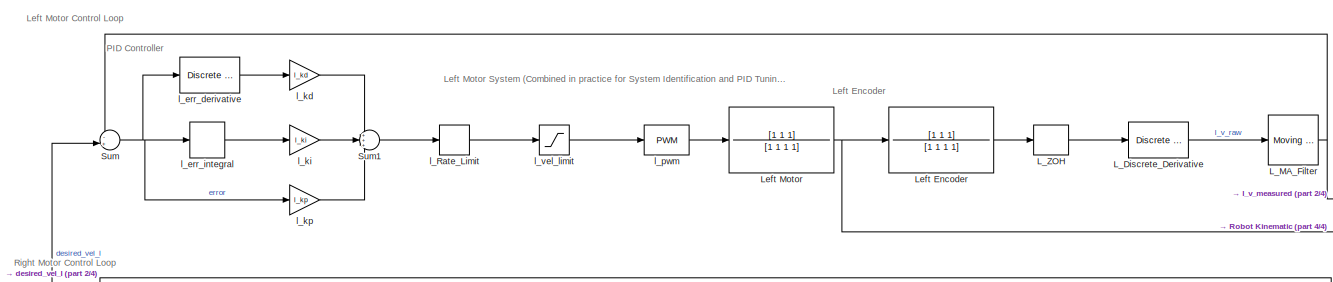
[diagram: root canvas - part 1/4, top center region]
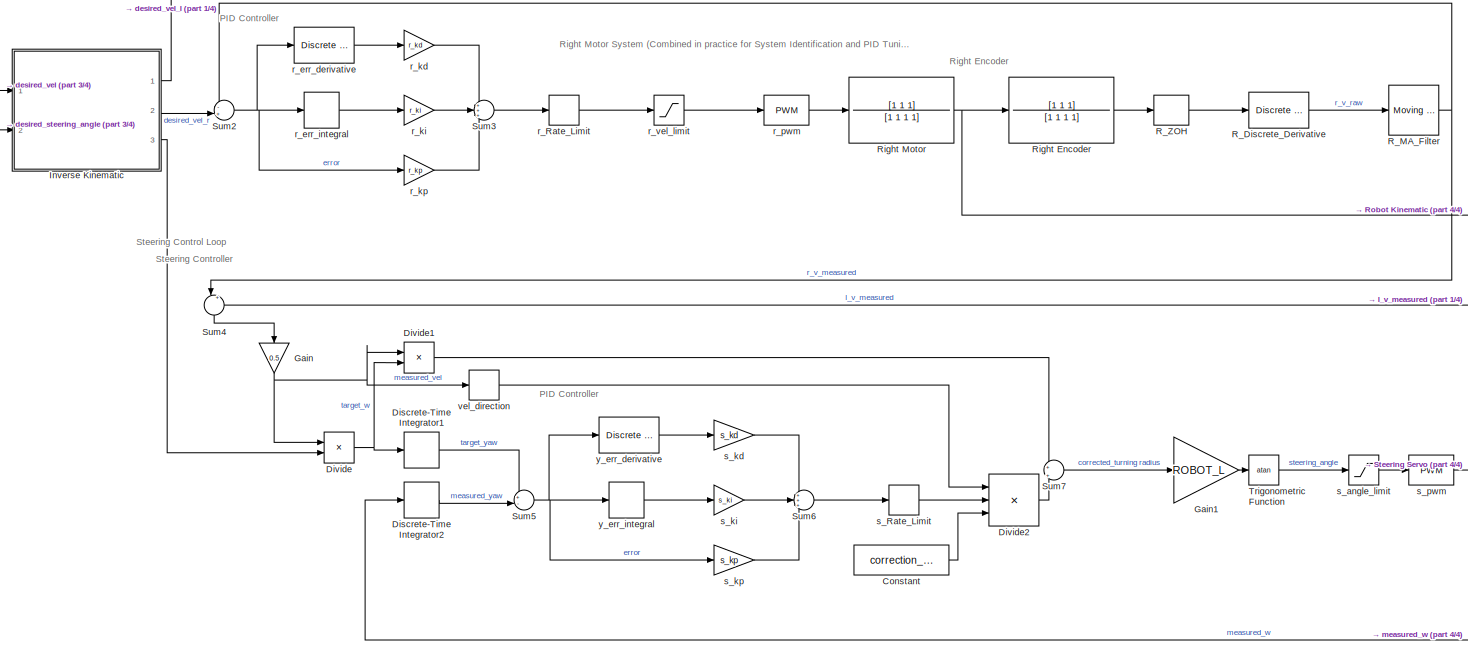
[diagram: root canvas - part 2/4, central region]
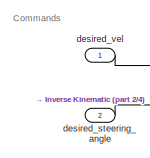
[diagram: root canvas - part 3/4, middle left region]
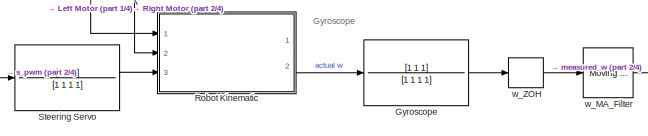
[diagram: root canvas - part 4/4, bottom right region]
MODEL slx_bd63fd829287
KIND model
CONFIG AbsTol = auto
CONFIG EnableMultiTasking = off
CONFIG FixedStep = auto
CONFIG MaxStep = auto
CONFIG MinStep = auto
CONFIG RelTol = 1e-3
CONFIG SampleTimeConstraint = Unconstrained
CONFIG SolverName = VariableStepAuto
CONFIG StartTime = 0.0
CONFIG StopTime = 10.0
WORKSPACE source: mxarray member
WORKSPACE ROBOT_L = 0.145
WORKSPACE ROBOT_T = 0.16
WORKSPACE WHEEL_R = 0.0325
WORKSPACE correction_distance = 0.01
WORKSPACE l_kd = 1
WORKSPACE l_ki = 1
WORKSPACE l_kp = 1
WORKSPACE r_kd = 1
WORKSPACE r_ki = 1
WORKSPACE r_kp = 1
WORKSPACE s_kd = 1
WORKSPACE s_ki = 1
WORKSPACE s_kp = 1
BLOCK [Constant] Constant
  Value = correction_distance
BLOCK [DiscreteIntegrator] Discrete-Time Integrator1
  ICPrevOutput = DiscIntNeverNeededParam
  ICPrevScaledInput = DiscIntNeverNeededParam
  InitialConditionSetting = Auto
  Ports = [1, 1]
  SampleTime = -1
BLOCK [DiscreteIntegrator] Discrete-Time Integrator2
  ICPrevOutput = DiscIntNeverNeededParam
  ICPrevScaledInput = DiscIntNeverNeededParam
  InitialConditionSetting = Auto
  Ports = [1, 1]
  SampleTime = -1
BLOCK [Product] Divide
  Inputs = */
  Ports = [2, 1]
BLOCK [Product] Divide1
  Inputs = /*
  Ports = [2, 1]
BLOCK [Product] Divide2
  Inputs = **/
  Ports = [3, 1]
BLOCK [Gain] Gain
  Gain = 0.5
  NameLocation = left
BLOCK [Gain] Gain1
  Gain = ROBOT_L
BLOCK [TransferFcn] Gyroscope
  Denominator = [1 1 1 1]
  Numerator = [1 1 1]
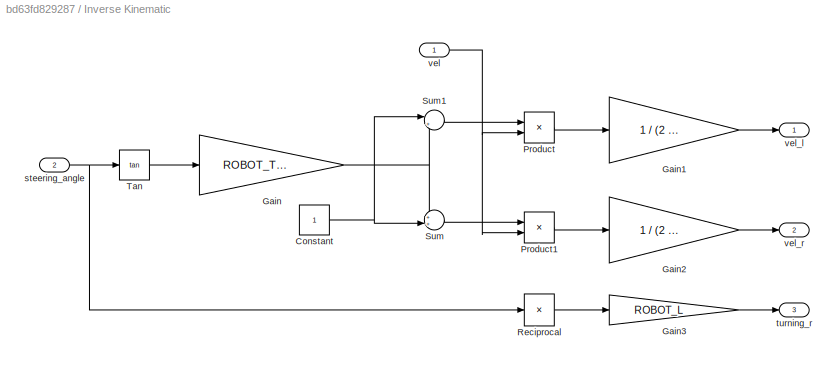
BLOCK [SubSystem] Inverse Kinematic
  Ports = [2, 3]
  RequestExecContextInheritance = off
BLOCK [Constant] Inverse Kinematic/Constant
BLOCK [Gain] Inverse Kinematic/Gain
  Gain = ROBOT_T / (2*ROBOT_L)
BLOCK [Gain] Inverse Kinematic/Gain1
  Gain = 1 / (2 * WHEEL_R * pi())
BLOCK [Gain] Inverse Kinematic/Gain2
  Gain = 1 / (2 * WHEEL_R * pi())
BLOCK [Gain] Inverse Kinematic/Gain3
  Gain = ROBOT_L
BLOCK [Product] Inverse Kinematic/Product
  Ports = [2, 1]
BLOCK [Product] Inverse Kinematic/Product1
  Ports = [2, 1]
BLOCK [Product] Inverse Kinematic/Reciprocal
  Inputs = /
  Ports = [1, 1]
BLOCK [Sum] Inverse Kinematic/Sum
  Inputs = ++|
  Ports = [2, 1]
BLOCK [Sum] Inverse Kinematic/Sum1
  Inputs = |+-
  Ports = [2, 1]
BLOCK [Trigonometry] Inverse Kinematic/Tan
  Operator = tan
  Ports = [1, 1]
BLOCK [Inport] Inverse Kinematic/steering_angle
  Port = 2
BLOCK [Outport] Inverse Kinematic/turning_r
  Port = 3
BLOCK [Inport] Inverse Kinematic/vel
BLOCK [Outport] Inverse Kinematic/vel_l
BLOCK [Outport] Inverse Kinematic/vel_r
  Port = 2
BLOCK [Reference] L_Discrete_Derivative  REF=simulink/Discrete/Discrete Derivative
  Ports = [1, 1]
  SourceBlock = simulink/Discrete/Discrete Derivative
  SourceProductBaseCode = SL
  SourceType = Discrete Derivative
BLOCK [Reference] L_MA_Filter  REF=dspstat3/Moving
Average
  Ports = [1, 1]
  SourceBlock = dspstat3/Moving\nAverage
  SourceProductBaseCode = DS
  SourceType = dsp.simulink.MovingAverage
BLOCK [ZeroOrderHold] L_ZOH
  SampleTime = -1
BLOCK [TransferFcn] Left Encoder
  Denominator = [1 1 1 1]
  Numerator = [1 1 1]
BLOCK [TransferFcn] Left Motor
  Denominator = [1 1 1 1]
  Numerator = [1 1 1]
BLOCK [Reference] R_Discrete_Derivative  REF=simulink/Discrete/Discrete Derivative
  Ports = [1, 1]
  SourceBlock = simulink/Discrete/Discrete Derivative
  SourceProductBaseCode = SL
  SourceType = Discrete Derivative
BLOCK [Reference] R_MA_Filter  REF=dspstat3/Moving
Average
  Ports = [1, 1]
  SourceBlock = dspstat3/Moving\nAverage
  SourceProductBaseCode = DS
  SourceType = dsp.simulink.MovingAverage
BLOCK [ZeroOrderHold] R_ZOH
  SampleTime = -1
BLOCK [TransferFcn] Right Encoder
  Denominator = [1 1 1 1]
  Numerator = [1 1 1]
BLOCK [TransferFcn] Right Motor
  Denominator = [1 1 1 1]
  Numerator = [1 1 1]
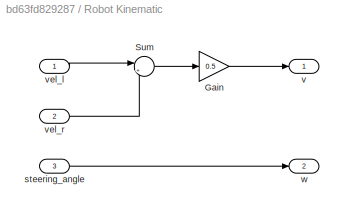
BLOCK [SubSystem] Robot Kinematic
  Ports = [3, 2]
  RequestExecContextInheritance = off
BLOCK [Gain] Robot Kinematic/Gain
  Gain = 0.5
BLOCK [Sum] Robot Kinematic/Sum
  Inputs = |++
  Ports = [2, 1]
BLOCK [Inport] Robot Kinematic/steering_angle
  Port = 3
BLOCK [Outport] Robot Kinematic/v
BLOCK [Inport] Robot Kinematic/vel_l
BLOCK [Inport] Robot Kinematic/vel_r
  Port = 2
BLOCK [Outport] Robot Kinematic/w
  Port = 2
BLOCK [TransferFcn] Steering Servo
  Denominator = [1 1 1 1]
  Numerator = [1 1 1]
BLOCK [Sum] Sum
  Inputs = -+|
  Ports = [2, 1]
BLOCK [Sum] Sum1
  Inputs = +++
  Ports = [3, 1]
BLOCK [Sum] Sum2
  Inputs = -+|
  Ports = [2, 1]
BLOCK [Sum] Sum3
  Inputs = +++
  Ports = [3, 1]
BLOCK [Sum] Sum4
  Inputs = |++
  NameLocation = left
  Ports = [2, 1]
BLOCK [Sum] Sum5
  Inputs = +-|
  Ports = [2, 1]
BLOCK [Sum] Sum6
  Inputs = +++
  Ports = [3, 1]
BLOCK [Sum] Sum7
  Inputs = +|+
  Ports = [2, 1]
BLOCK [Trigonometry] Trigonometric Function
  Operator = atan
  Ports = [1, 1]
BLOCK [Inport] desired_steering_angle
  Port = 2
BLOCK [Inport] desired_vel
BLOCK [RateLimiter] l_Rate_Limit
  SampleTimeMode = inherited
BLOCK [Reference] l_err_derivative  REF=simulink/Discrete/Discrete Derivative
  Ports = [1, 1]
  SourceBlock = simulink/Discrete/Discrete Derivative
  SourceProductBaseCode = SL
  SourceType = Discrete Derivative
BLOCK [DiscreteIntegrator] l_err_integral
  ICPrevOutput = DiscIntNeverNeededParam
  ICPrevScaledInput = DiscIntNeverNeededParam
  InitialConditionSetting = Auto
  Ports = [1, 1]
  SampleTime = -1
BLOCK [Gain] l_kd
  Gain = l_kd
BLOCK [Gain] l_ki
  Gain = l_ki
BLOCK [Gain] l_kp
  Gain = l_kp
BLOCK [Reference] l_pwm  REF=simulink/Discontinuities/PWM
  DisableCoverage = on
  Ports = [1, 1]
  SourceBlock = simulink/Discontinuities/PWM
  SourceProductBaseCode = SL
  SourceType = PWM
BLOCK [Saturate] l_vel_limit
BLOCK [RateLimiter] r_Rate_Limit
  SampleTimeMode = inherited
BLOCK [Reference] r_err_derivative  REF=simulink/Discrete/Discrete Derivative
  Ports = [1, 1]
  SourceBlock = simulink/Discrete/Discrete Derivative
  SourceProductBaseCode = SL
  SourceType = Discrete Derivative
BLOCK [DiscreteIntegrator] r_err_integral
  ICPrevOutput = DiscIntNeverNeededParam
  ICPrevScaledInput = DiscIntNeverNeededParam
  InitialConditionSetting = Auto
  Ports = [1, 1]
  SampleTime = -1
BLOCK [Gain] r_kd
  Gain = r_kd
BLOCK [Gain] r_ki
  Gain = r_ki
BLOCK [Gain] r_kp
  Gain = r_kp
BLOCK [Reference] r_pwm  REF=simulink/Discontinuities/PWM
  DisableCoverage = on
  Ports = [1, 1]
  SourceBlock = simulink/Discontinuities/PWM
  SourceProductBaseCode = SL
  SourceType = PWM
BLOCK [Saturate] r_vel_limit
BLOCK [RateLimiter] s_Rate_Limit
  SampleTimeMode = inherited
BLOCK [Saturate] s_angle_limit
BLOCK [Gain] s_kd
  Gain = s_kd
BLOCK [Gain] s_ki
  Gain = s_ki
BLOCK [Gain] s_kp
  Gain = s_kp
BLOCK [Reference] s_pwm  REF=simulink/Discontinuities/PWM
  DisableCoverage = on
  Ports = [1, 1]
  SourceBlock = simulink/Discontinuities/PWM
  SourceProductBaseCode = SL
  SourceType = PWM
BLOCK [Signum] vel_direction
BLOCK [Reference] w_MA_Filter  REF=dspstat3/Moving
Average
  Ports = [1, 1]
  SourceBlock = dspstat3/Moving\nAverage
  SourceProductBaseCode = DS
  SourceType = dsp.simulink.MovingAverage
BLOCK [ZeroOrderHold] w_ZOH
  SampleTime = -1
BLOCK [Reference] y_err_derivative  REF=simulink/Discrete/Discrete Derivative
  Ports = [1, 1]
  SourceBlock = simulink/Discrete/Discrete Derivative
  SourceProductBaseCode = SL
  SourceType = Discrete Derivative
BLOCK [DiscreteIntegrator] y_err_integral
  ICPrevOutput = DiscIntNeverNeededParam
  ICPrevScaledInput = DiscIntNeverNeededParam
  InitialConditionSetting = Auto
  Ports = [1, 1]
  SampleTime = -1
ANNOTATION (root): Commands
ANNOTATION (root): Gyroscope
ANNOTATION (root): Left Encoder
ANNOTATION (root): Left Motor Control Loop
ANNOTATION (root): Left Motor System (Combined in practice for System Identification and PID Tuning)
ANNOTATION (root): PID Controller
ANNOTATION (root): Right Encoder
ANNOTATION (root): Right Motor Control Loop
ANNOTATION (root): Right Motor System (Combined in practice for System Identification and PID Tuning)
ANNOTATION (root): Steering Control Loop
ANNOTATION (root): Steering Controller
LINE Constant:1 -> Divide2:3
LINE Discrete-Time Integrator1:1 -> Sum5:1
LINE Discrete-Time Integrator2:1 -> Sum5:2
LINE Divide1:1 -> Sum7:1
LINE Divide2:1 -> Sum7:2
NET Divide:1 -> Discrete-Time Integrator1:1, Divide1:2
LINE Gain1:1 -> Trigonometric Function:1
NET Gain:1 -> Divide1:1, Divide:1, vel_direction:1
LINE Gyroscope:1 -> w_ZOH:1
NET Inverse Kinematic/Constant:1 -> Inverse Kinematic/Sum1:1, Inverse Kinematic/Sum:2
LINE Inverse Kinematic/Gain1:1 -> Inverse Kinematic/vel_l:1
LINE Inverse Kinematic/Gain2:1 -> Inverse Kinematic/vel_r:1
LINE Inverse Kinematic/Gain3:1 -> Inverse Kinematic/turning_r:1
NET Inverse Kinematic/Gain:1 -> Inverse Kinematic/Sum1:2, Inverse Kinematic/Sum:1
LINE Inverse Kinematic/Product1:1 -> Inverse Kinematic/Gain2:1
LINE Inverse Kinematic/Product:1 -> Inverse Kinematic/Gain1:1
LINE Inverse Kinematic/Reciprocal:1 -> Inverse Kinematic/Gain3:1
LINE Inverse Kinematic/Sum1:1 -> Inverse Kinematic/Product:1
LINE Inverse Kinematic/Sum:1 -> Inverse Kinematic/Product1:1
LINE Inverse Kinematic/Tan:1 -> Inverse Kinematic/Gain:1
NET Inverse Kinematic/steering_angle:1 -> Inverse Kinematic/Reciprocal:1, Inverse Kinematic/Tan:1
NET Inverse Kinematic/vel:1 -> Inverse Kinematic/Product1:2, Inverse Kinematic/Product:2
LINE Inverse Kinematic:1 -> Sum:2
LINE Inverse Kinematic:2 -> Sum2:2
LINE Inverse Kinematic:3 -> Divide:2
LINE L_Discrete_Derivative:1 -> L_MA_Filter:1
NET L_MA_Filter:1 -> Sum4:2, Sum:1
LINE L_ZOH:1 -> L_Discrete_Derivative:1
LINE Left Encoder:1 -> L_ZOH:1
NET Left Motor:1 -> Left Encoder:1, Robot Kinematic:1
LINE R_Discrete_Derivative:1 -> R_MA_Filter:1
NET R_MA_Filter:1 -> Sum2:1, Sum4:1
LINE R_ZOH:1 -> R_Discrete_Derivative:1
LINE Right Encoder:1 -> R_ZOH:1
NET Right Motor:1 -> Right Encoder:1, Robot Kinematic:2
LINE Robot Kinematic/Gain:1 -> Robot Kinematic/v:1
LINE Robot Kinematic/Sum:1 -> Robot Kinematic/Gain:1
LINE Robot Kinematic/steering_angle:1 -> Robot Kinematic/w:1
LINE Robot Kinematic/vel_l:1 -> Robot Kinematic/Sum:1
LINE Robot Kinematic/vel_r:1 -> Robot Kinematic/Sum:2
LINE Robot Kinematic:2 -> Gyroscope:1
LINE Steering Servo:1 -> Robot Kinematic:3
LINE Sum1:1 -> l_Rate_Limit:1
NET Sum2:1 -> r_err_derivative:1, r_err_integral:1, r_kp:1
LINE Sum3:1 -> r_Rate_Limit:1
LINE Sum4:1 -> Gain:1
NET Sum5:1 -> s_kp:1, y_err_derivative:1, y_err_integral:1
LINE Sum6:1 -> s_Rate_Limit:1
LINE Sum7:1 -> Gain1:1
NET Sum:1 -> l_err_derivative:1, l_err_integral:1, l_kp:1
LINE Trigonometric Function:1 -> s_angle_limit:1
LINE desired_steering_angle:1 -> Inverse Kinematic:2
LINE desired_vel:1 -> Inverse Kinematic:1
LINE l_Rate_Limit:1 -> l_vel_limit:1
LINE l_err_derivative:1 -> l_kd:1
LINE l_err_integral:1 -> l_ki:1
LINE l_kd:1 -> Sum1:1
LINE l_ki:1 -> Sum1:2
LINE l_kp:1 -> Sum1:3
LINE l_pwm:1 -> Left Motor:1
LINE l_vel_limit:1 -> l_pwm:1
LINE r_Rate_Limit:1 -> r_vel_limit:1
LINE r_err_derivative:1 -> r_kd:1
LINE r_err_integral:1 -> r_ki:1
LINE r_kd:1 -> Sum3:1
LINE r_ki:1 -> Sum3:2
LINE r_kp:1 -> Sum3:3
LINE r_pwm:1 -> Right Motor:1
LINE r_vel_limit:1 -> r_pwm:1
LINE s_Rate_Limit:1 -> Divide2:2
LINE s_angle_limit:1 -> s_pwm:1
LINE s_kd:1 -> Sum6:1
LINE s_ki:1 -> Sum6:2
LINE s_kp:1 -> Sum6:3
LINE s_pwm:1 -> Steering Servo:1
LINE vel_direction:1 -> Divide2:1
LINE w_MA_Filter:1 -> Discrete-Time Integrator2:1
LINE w_ZOH:1 -> w_MA_Filter:1
LINE y_err_derivative:1 -> s_kd:1
LINE y_err_integral:1 -> s_ki:1
note: NET lines group one-source signal fan-out (src -> all destinations, sorted); 1:1 wires keep LINE
